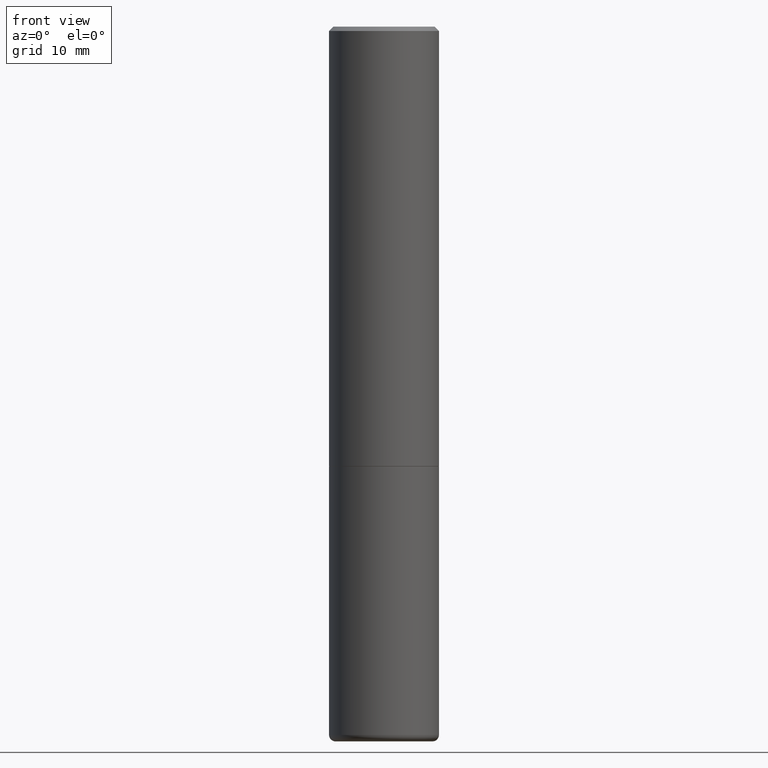
[diagram: clean part render]
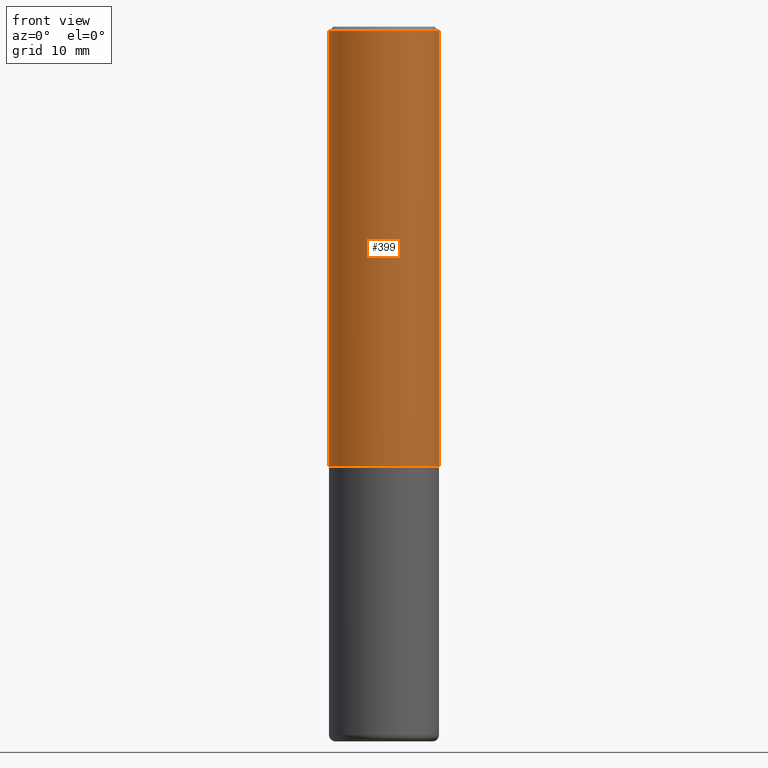
[diagram: same view with one face highlighted and labeled with its STEP entity id]
A machine part, front view. The second image highlights one B-rep face of the part: STEP entity #399.
In plain terms, the highlighted cylindrical surface (partial cylindrical patch) has radius 6.35 mm, axis along (-0, 0, 1).
Its self-contained STEP definition (entity closure, byte-faithful):
#12 = ORIENTED_EDGE ( 'NONE', *, *, #326, .T. ) ;
#37 = CARTESIAN_POINT ( 'NONE',  ( 0.000000000000000000, 0.000000000000000000, 0.000000000000000000 ) ) ;
#68 = AXIS2_PLACEMENT_3D ( 'NONE', #37, #274, #122 ) ;
#107 = FACE_OUTER_BOUND ( 'NONE', #273, .T. ) ;
#110 = CYLINDRICAL_SURFACE ( 'NONE', #68, 0.2499999999999995282 ) ;
#122 = DIRECTION ( 'NONE',  ( 1.000000000000000000, -6.982962677686266711E-15, 4.876176775795935232E-29 ) ) ;
#124 = CARTESIAN_POINT ( 'NONE',  ( 4.888492143564087591E-29, -6.979471196347447369E-15, -1.998999999999999888 ) ) ;
#126 = ORIENTED_EDGE ( 'NONE', *, *, #431, .T. ) ;
#149 = CIRCLE ( 'NONE', #482, 0.2499999999999996669 ) ;
#158 = VECTOR ( 'NONE', #420, 39.37007874015748143 ) ;
#190 = LINE ( 'NONE', #232, #158 ) ;
#207 = EDGE_CURVE ( 'NONE', #225, #388, #289, .T. ) ;
#217 = LINE ( 'NONE', #222, #218 ) ;
#218 = VECTOR ( 'NONE', #338, 39.37007874015748143 ) ;
#222 = CARTESIAN_POINT ( 'NONE',  ( 0.2499999999999995282, -1.745740669421563325E-15, 1.219044193948981566E-29 ) ) ;
#225 = VERTEX_POINT ( 'NONE', #283 ) ;
#231 = ORIENTED_EDGE ( 'NONE', *, *, #207, .F. ) ;
#232 = CARTESIAN_POINT ( 'NONE',  ( -0.2499999999999995282, 1.776356839400247112E-15, -1.229733772563724063E-29 ) ) ;
#269 = DIRECTION ( 'NONE',  ( -2.445468806185136597E-29, 3.491481338843145583E-15, 1.000000000000000000 ) ) ;
#273 = EDGE_LOOP ( 'NONE', ( #486, #126, #12, #231 ) ) ;
#274 = DIRECTION ( 'NONE',  ( -2.445468806185136597E-29, 3.491481338843145583E-15, 1.000000000000000000 ) ) ;
#278 = DIRECTION ( 'NONE',  ( -2.445468806185136597E-29, 3.491481338843145583E-15, 1.000000000000000000 ) ) ;
#283 = CARTESIAN_POINT ( 'NONE',  ( -0.2499999999999994171, 1.675911042644699238E-15, -0.02000000000000013226 ) ) ;
#287 = DIRECTION ( 'NONE',  ( 1.000000000000000000, -6.982962677686266711E-15, 0.000000000000000000 ) ) ;
#289 = CIRCLE ( 'NONE', #348, 0.2499999999999994171 ) ;
#297 = CARTESIAN_POINT ( 'NONE',  ( 0.2499999999999994171, -1.784954126219742244E-15, -0.02000000000000013226 ) ) ;
#299 = CARTESIAN_POINT ( 'NONE',  ( -0.2499999999999996114, -1.748293572161906447E-15, -1.998999999999999888 ) ) ;
#309 = DIRECTION ( 'NONE',  ( 1.000000000000000000, -6.982962677686264344E-15, 0.000000000000000000 ) ) ;
#326 = EDGE_CURVE ( 'NONE', #465, #388, #217, .T. ) ;
#338 = DIRECTION ( 'NONE',  ( -2.445468806185136877E-29, 3.491481338843145188E-15, 1.000000000000000000 ) ) ;
#343 = VERTEX_POINT ( 'NONE', #299 ) ;
#348 = AXIS2_PLACEMENT_3D ( 'NONE', #479, #278, #287 ) ;
#388 = VERTEX_POINT ( 'NONE', #297 ) ;
#390 = CARTESIAN_POINT ( 'NONE',  ( 0.2499999999999996669, -8.725211865769010891E-15, -1.998999999999999888 ) ) ;
#399 = ADVANCED_FACE ( 'NONE', ( #107 ), #110, .T. ) ;
#420 = DIRECTION ( 'NONE',  ( -2.445468806185136877E-29, 3.491481338843145188E-15, 1.000000000000000000 ) ) ;
#431 = EDGE_CURVE ( 'NONE', #343, #465, #149, .T. ) ;
#455 = EDGE_CURVE ( 'NONE', #343, #225, #190, .T. ) ;
#465 = VERTEX_POINT ( 'NONE', #390 ) ;
#479 = CARTESIAN_POINT ( 'NONE',  ( 4.890937612370304688E-31, -6.982962677686337215E-17, -0.02000000000000013226 ) ) ;
#482 = AXIS2_PLACEMENT_3D ( 'NONE', #124, #269, #309 ) ;
#486 = ORIENTED_EDGE ( 'NONE', *, *, #455, .F. ) ;